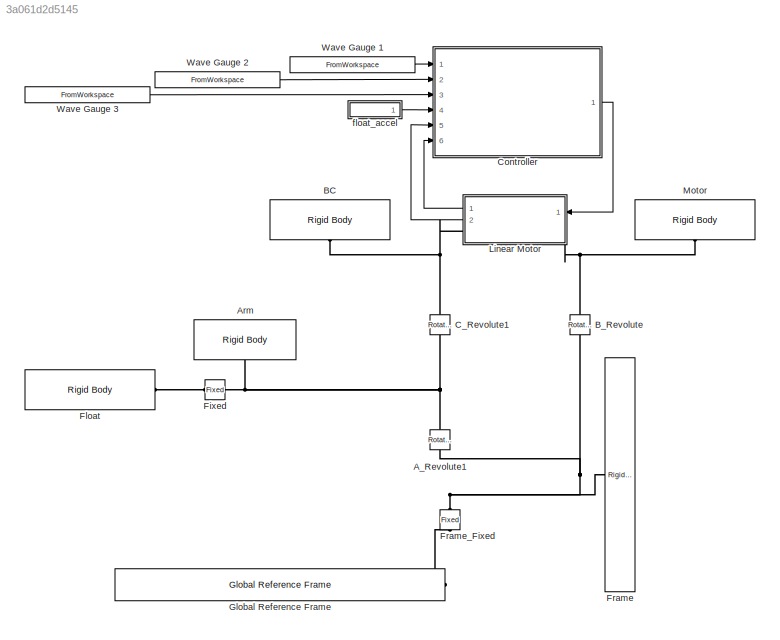
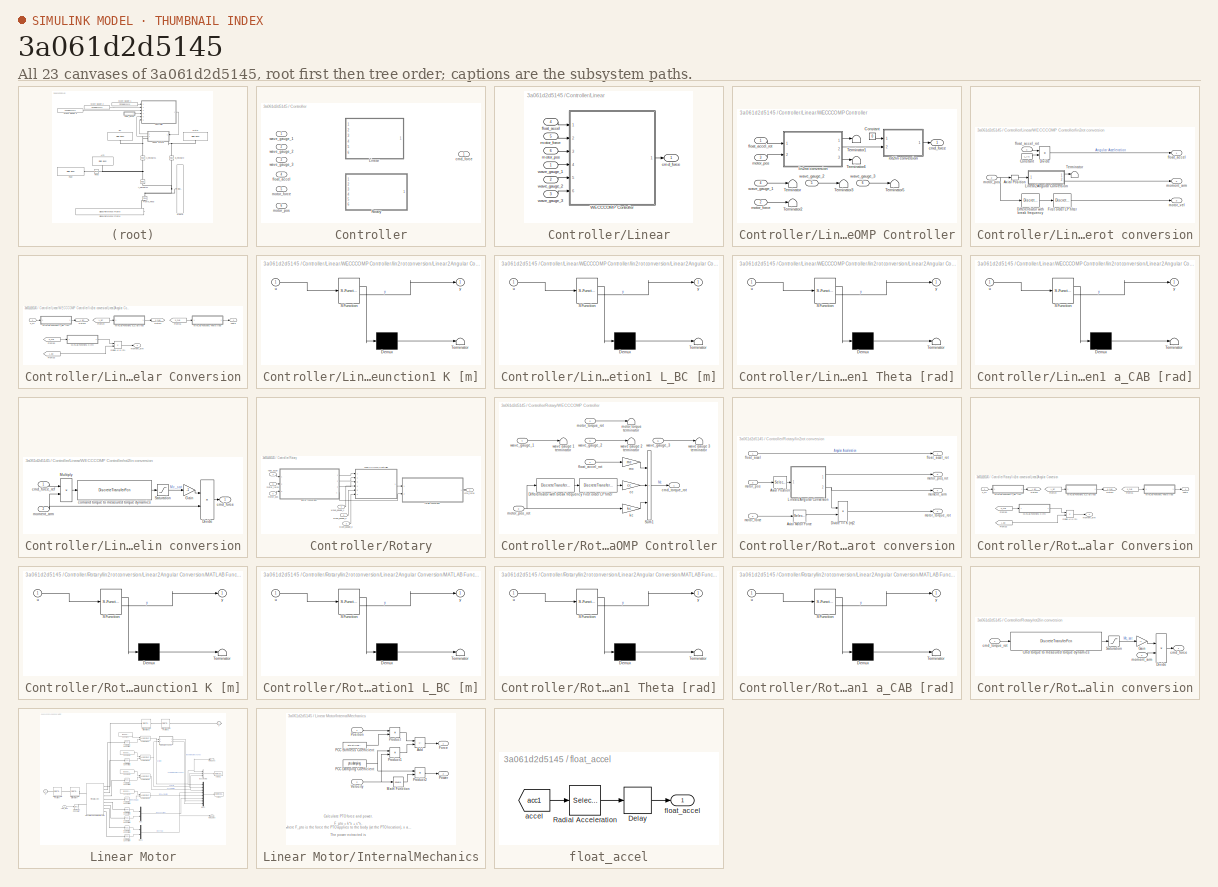
[diagram: thumbnail index - all 23 canvases of the model, root first then tree order]
MODEL slx_3a061d2d5145
KIND model
CONFIG AbsTol = auto
CONFIG EnableMultiTasking = on
CONFIG FixedStep = 0.001
CONFIG MaxStep = 0.001
CONFIG MinStep = auto
CONFIG RelTol = 1e-3
CONFIG SampleTimeConstraint = Unconstrained
CONFIG SolverName = ode4
CONFIG StartTime = 0
CONFIG StopTime = 141.2
BLOCK [Reference] A_Revolute1  REF=WECSim_Lib_Constraints/Rotational
  AttributesFormatString = %<constraint>
  NameLocation = right
  Ports = [0, 0, 0, 0, 0, 1, 1]
  SourceBlock = WECSim_Lib_Constraints/Rotational
  SourceProductName = WEC-Sim
  SourceType = Constraints
BLOCK [Reference] Arm  REF=WECSim_Lib_Body_Elements/Rigid Body
  AttributesFormatString = %<body>
  NameLocation = left
  Ports = [0, 0, 0, 0, 0, 0, 1]
  SourceBlock = WECSim_Lib_Body_Elements/Rigid Body
  SourceProductName = WEC-Sim
  SourceType = Rigid Body
BLOCK [Reference] BC  REF=WECSim_Lib_Body_Elements/Rigid Body
  AttributesFormatString = %<body>
  NameLocation = left
  Ports = [0, 0, 0, 0, 0, 0, 1]
  SourceBlock = WECSim_Lib_Body_Elements/Rigid Body
  SourceProductName = WEC-Sim
  SourceType = Rigid Body
BLOCK [Reference] B_Revolute  REF=WECSim_Lib_Constraints/Rotational
  AttributesFormatString = %<constraint>
  NameLocation = right
  Ports = [0, 0, 0, 0, 0, 1, 1]
  SourceBlock = WECSim_Lib_Constraints/Rotational
  SourceProductName = WEC-Sim
  SourceType = Constraints
BLOCK [Reference] C_Revolute1  REF=WECSim_Lib_Constraints/Rotational
  AttributesFormatString = %<constraint>
  NameLocation = right
  Ports = [0, 0, 0, 0, 0, 1, 1]
  SourceBlock = WECSim_Lib_Constraints/Rotational
  SourceProductName = WEC-Sim
  SourceType = Constraints
BLOCK [SubSystem] Controller
  LabelModeActiveChoice = VSS_Rotary
  Ports = [6, 1]
  RequestExecContextInheritance = off
  Variant = on
  VariantControl = Variant1
  VariantControlMode = label
BLOCK [SubSystem] Controller/Linear
  Ports = [6, 1]
  RequestExecContextInheritance = off
  VariantControl = VSS_Linear
BLOCK [SubSystem] Controller/Linear/WECCCOMP Controller
  Ports = [6, 1]
  RequestExecContextInheritance = off
BLOCK [Constant] Controller/Linear/WECCCOMP Controller/Constant
  NameLocation = top
  Value = 0
BLOCK [Terminator] Controller/Linear/WECCCOMP Controller/Terminator
BLOCK [Terminator] Controller/Linear/WECCCOMP Controller/Terminator1
BLOCK [Terminator] Controller/Linear/WECCCOMP Controller/Terminator2
BLOCK [Terminator] Controller/Linear/WECCCOMP Controller/Terminator3
BLOCK [Terminator] Controller/Linear/WECCCOMP Controller/Terminator4
BLOCK [Terminator] Controller/Linear/WECCCOMP Controller/Terminator5
BLOCK [Outport] Controller/Linear/WECCCOMP Controller/cmd_force
  VectorParamsAs1DForOutWhenUnconnected = off
BLOCK [Inport] Controller/Linear/WECCCOMP Controller/float_accel_rot
BLOCK [SubSystem] Controller/Linear/WECCCOMP Controller/lin2rot conversion
  Ports = [2, 3]
  RequestExecContextInheritance = off
BLOCK [Selector] Controller/Linear/WECCCOMP Controller/lin2rot conversion/Axial Position
  IndexOptions = Index vector (dialog)
  Indices = [3]
  InputPortWidth = 6
  OutputSizes = 1
  Ports = [1, 1]
BLOCK [Constant] Controller/Linear/WECCCOMP Controller/lin2rot conversion/Constant
  Value = L_AC
BLOCK [DiscreteTransferFcn] Controller/Linear/WECCCOMP Controller/lin2rot conversion/Differentiator with break frequency
  Denominator = [(2+2*pi*HPfreq.vel*xPcTs) (2*pi*HPfreq.vel*xPcTs-2)]
  InputPortMap = u0
  Numerator = [1 -1]*2*2*pi*HPfreq.vel
  Ports = [1, 1]
BLOCK [Product] Controller/Linear/WECCCOMP Controller/lin2rot conversion/Divide
  Inputs = **
  Ports = [2, 1]
BLOCK [DiscreteTransferFcn] Controller/Linear/WECCCOMP Controller/lin2rot conversion/First order LP filter
  Denominator = [(2+xPcTs*2*pi*LPfreq.vel) (xPcTs*2*pi*LPfreq.vel-2)]
  InputPortMap = u0
  Numerator = [1 1]*xPcTs*2*pi*LPfreq.vel
  Ports = [1, 1]
BLOCK [SubSystem] Controller/Linear/WECCCOMP Controller/lin2rot conversion/Linear2Angular Conversion
  Ports = [1, 2]
  RequestExecContextInheritance = off
BLOCK [Product] Controller/Linear/WECCCOMP Controller/lin2rot conversion/Linear2Angular Conversion/Divide => K (m)
  Inputs = */
  Ports = [2, 1]
BLOCK [From] Controller/Linear/WECCCOMP Controller/lin2rot conversion/Linear2Angular Conversion/From30
  GotoTag = a_CAB
BLOCK [From] Controller/Linear/WECCCOMP Controller/lin2rot conversion/Linear2Angular Conversion/From31
  GotoTag = a_CAB
BLOCK [From] Controller/Linear/WECCCOMP Controller/lin2rot conversion/Linear2Angular Conversion/From33
  GotoTag = L_BC
BLOCK [From] Controller/Linear/WECCCOMP Controller/lin2rot conversion/Linear2Angular Conversion/From34
  GotoTag = L_BC
BLOCK [Goto] Controller/Linear/WECCCOMP Controller/lin2rot conversion/Linear2Angular Conversion/Goto11
  GotoTag = a_CAB
BLOCK [Goto] Controller/Linear/WECCCOMP Controller/lin2rot conversion/Linear2Angular Conversion/Goto12
  GotoTag = L_BC
BLOCK [SubSystem] Controller/Linear/WECCCOMP Controller/lin2rot conversion/Linear2Angular Conversion/MATLAB Function1 K [m]
  ErrorFcn = Stateflow.Translate.translate
  PermitHierarchicalResolution = ExplicitOnly
  Ports = [1, 1]
  RequestExecContextInheritance = off
  SFBlockType = MATLAB Function
  TreatAsAtomicUnit = on
BLOCK [Demux] Controller/Linear/WECCCOMP Controller/lin2rot conversion/Linear2Angular Conversion/MATLAB Function1 K [m]/ Demux 
  Outputs = 1
  Ports = [1, 1]
BLOCK [S-Function] Controller/Linear/WECCCOMP Controller/lin2rot conversion/Linear2Angular Conversion/MATLAB Function1 K [m]/ SFunction 
  EnableBusSupport = on
  FunctionName = sf_sfun
  Parameters = L_AB,L_AC
  PortCounts = [1 2]
  Ports = [1, 2]
  SFcnIsStateOwnerBlock = off
  SFunctionDeploymentMode = off
  Tag = Stateflow S-Function 1
BLOCK [Terminator] Controller/Linear/WECCCOMP Controller/lin2rot conversion/Linear2Angular Conversion/MATLAB Function1 K [m]/ Terminator 
BLOCK [Inport] Controller/Linear/WECCCOMP Controller/lin2rot conversion/Linear2Angular Conversion/MATLAB Function1 K [m]/u
BLOCK [Outport] Controller/Linear/WECCCOMP Controller/lin2rot conversion/Linear2Angular Conversion/MATLAB Function1 K [m]/y
  VectorParamsAs1DForOutWhenUnconnected = off
BLOCK [SubSystem] Controller/Linear/WECCCOMP Controller/lin2rot conversion/Linear2Angular Conversion/MATLAB Function1 L_BC [m]
  ErrorFcn = Stateflow.Translate.translate
  PermitHierarchicalResolution = ExplicitOnly
  Ports = [1, 1]
  RequestExecContextInheritance = off
  SFBlockType = MATLAB Function
  TreatAsAtomicUnit = on
BLOCK [Demux] Controller/Linear/WECCCOMP Controller/lin2rot conversion/Linear2Angular Conversion/MATLAB Function1 L_BC [m]/ Demux 
  Outputs = 1
  Ports = [1, 1]
BLOCK [S-Function] Controller/Linear/WECCCOMP Controller/lin2rot conversion/Linear2Angular Conversion/MATLAB Function1 L_BC [m]/ SFunction 
  EnableBusSupport = on
  FunctionName = sf_sfun
  Parameters = L_BC_neutral
  PortCounts = [1 2]
  Ports = [1, 2]
  SFcnIsStateOwnerBlock = off
  SFunctionDeploymentMode = off
  Tag = Stateflow S-Function 2
BLOCK [Terminator] Controller/Linear/WECCCOMP Controller/lin2rot conversion/Linear2Angular Conversion/MATLAB Function1 L_BC [m]/ Terminator 
BLOCK [Inport] Controller/Linear/WECCCOMP Controller/lin2rot conversion/Linear2Angular Conversion/MATLAB Function1 L_BC [m]/u
BLOCK [Outport] Controller/Linear/WECCCOMP Controller/lin2rot conversion/Linear2Angular Conversion/MATLAB Function1 L_BC [m]/y
  VectorParamsAs1DForOutWhenUnconnected = off
BLOCK [SubSystem] Controller/Linear/WECCCOMP Controller/lin2rot conversion/Linear2Angular Conversion/MATLAB Function1 Theta [rad]
  ErrorFcn = Stateflow.Translate.translate
  PermitHierarchicalResolution = ExplicitOnly
  Ports = [1, 1]
  RequestExecContextInheritance = off
  SFBlockType = MATLAB Function
  TreatAsAtomicUnit = on
BLOCK [Demux] Controller/Linear/WECCCOMP Controller/lin2rot conversion/Linear2Angular Conversion/MATLAB Function1 Theta [rad]/ Demux 
  Outputs = 1
  Ports = [1, 1]
BLOCK [S-Function] Controller/Linear/WECCCOMP Controller/lin2rot conversion/Linear2Angular Conversion/MATLAB Function1 Theta [rad]/ SFunction 
  EnableBusSupport = on
  FunctionName = sf_sfun
  Parameters = a_CAB_neutral
  PortCounts = [1 2]
  Ports = [1, 2]
  SFcnIsStateOwnerBlock = off
  SFunctionDeploymentMode = off
  Tag = Stateflow S-Function 3
BLOCK [Terminator] Controller/Linear/WECCCOMP Controller/lin2rot conversion/Linear2Angular Conversion/MATLAB Function1 Theta [rad]/ Terminator 
BLOCK [Inport] Controller/Linear/WECCCOMP Controller/lin2rot conversion/Linear2Angular Conversion/MATLAB Function1 Theta [rad]/u
BLOCK [Outport] Controller/Linear/WECCCOMP Controller/lin2rot conversion/Linear2Angular Conversion/MATLAB Function1 Theta [rad]/y
  VectorParamsAs1DForOutWhenUnconnected = off
BLOCK [SubSystem] Controller/Linear/WECCCOMP Controller/lin2rot conversion/Linear2Angular Conversion/MATLAB Function1 a_CAB [rad]
  ErrorFcn = Stateflow.Translate.translate
  PermitHierarchicalResolution = ExplicitOnly
  Ports = [1, 1]
  RequestExecContextInheritance = off
  SFBlockType = MATLAB Function
  TreatAsAtomicUnit = on
BLOCK [Demux] Controller/Linear/WECCCOMP Controller/lin2rot conversion/Linear2Angular Conversion/MATLAB Function1 a_CAB [rad]/ Demux 
  Outputs = 1
  Ports = [1, 1]
BLOCK [S-Function] Controller/Linear/WECCCOMP Controller/lin2rot conversion/Linear2Angular Conversion/MATLAB Function1 a_CAB [rad]/ SFunction 
  EnableBusSupport = on
  FunctionName = sf_sfun
  Parameters = L_AB,L_AC
  PortCounts = [1 2]
  Ports = [1, 2]
  SFcnIsStateOwnerBlock = off
  SFunctionDeploymentMode = off
  Tag = Stateflow S-Function 5
BLOCK [Terminator] Controller/Linear/WECCCOMP Controller/lin2rot conversion/Linear2Angular Conversion/MATLAB Function1 a_CAB [rad]/ Terminator 
BLOCK [Inport] Controller/Linear/WECCCOMP Controller/lin2rot conversion/Linear2Angular Conversion/MATLAB Function1 a_CAB [rad]/u
BLOCK [Outport] Controller/Linear/WECCCOMP Controller/lin2rot conversion/Linear2Angular Conversion/MATLAB Function1 a_CAB [rad]/y
  VectorParamsAs1DForOutWhenUnconnected = off
BLOCK [Outport] Controller/Linear/WECCCOMP Controller/lin2rot conversion/Linear2Angular Conversion/Theta
  VectorParamsAs1DForOutWhenUnconnected = off
BLOCK [Outport] Controller/Linear/WECCCOMP Controller/lin2rot conversion/Linear2Angular Conversion/moment_arm
  Port = 2
  VectorParamsAs1DForOutWhenUnconnected = off
BLOCK [Inport] Controller/Linear/WECCCOMP Controller/lin2rot conversion/Linear2Angular Conversion/x_cyl
BLOCK [Terminator] Controller/Linear/WECCCOMP Controller/lin2rot conversion/Terminator
BLOCK [Outport] Controller/Linear/WECCCOMP Controller/lin2rot conversion/float_accel 
  VectorParamsAs1DForOutWhenUnconnected = off
BLOCK [Inport] Controller/Linear/WECCCOMP Controller/lin2rot conversion/float_accel_rot
  NameLocation = top
BLOCK [Outport] Controller/Linear/WECCCOMP Controller/lin2rot conversion/moment_arm
  Port = 2
  VectorParamsAs1DForOutWhenUnconnected = off
BLOCK [Inport] Controller/Linear/WECCCOMP Controller/lin2rot conversion/motor_pos 
  Port = 2
BLOCK [Outport] Controller/Linear/WECCCOMP Controller/lin2rot conversion/motor_vel
  Port = 3
  VectorParamsAs1DForOutWhenUnconnected = off
BLOCK [Inport] Controller/Linear/WECCCOMP Controller/motor_force
  Port = 2
BLOCK [Inport] Controller/Linear/WECCCOMP Controller/motor_pos 
  Port = 3
BLOCK [SubSystem] Controller/Linear/WECCCOMP Controller/rot2lin conversion
  Ports = [2, 1]
  RequestExecContextInheritance = off
BLOCK [Product] Controller/Linear/WECCCOMP Controller/rot2lin conversion/Divide 
  Inputs = */
  Ports = [2, 1]
BLOCK [Gain] Controller/Linear/WECCCOMP Controller/rot2lin conversion/Gain
  Gain = -1
BLOCK [Product] Controller/Linear/WECCCOMP Controller/rot2lin conversion/Multiply
  Inputs = **
  Ports = [2, 1]
BLOCK [Saturate] Controller/Linear/WECCCOMP Controller/rot2lin conversion/Saturation
  LowerLimit = -McSat
  UpperLimit = McSat
BLOCK [Outport] Controller/Linear/WECCCOMP Controller/rot2lin conversion/cmd_force
  VectorParamsAs1DForOutWhenUnconnected = off
BLOCK [Inport] Controller/Linear/WECCCOMP Controller/rot2lin conversion/cmd_force_ref
BLOCK [DiscreteTransferFcn] Controller/Linear/WECCCOMP Controller/rot2lin conversion/comand torque to measured torque dynamics
  Denominator = [1.0000   -1.9978    0.9978]
  InputPortMap = u0
  NameLocation = top
  Numerator = [ 0.9821   -1.9618    0.9797]
  Ports = [1, 1]
BLOCK [Inport] Controller/Linear/WECCCOMP Controller/rot2lin conversion/moment_arm
  Port = 2
BLOCK [Inport] Controller/Linear/WECCCOMP Controller/wave_gauge_1
  Port = 4
BLOCK [Inport] Controller/Linear/WECCCOMP Controller/wave_gauge_2
  Port = 5
BLOCK [Inport] Controller/Linear/WECCCOMP Controller/wave_gauge_3
  Port = 6
BLOCK [Outport] Controller/Linear/cmd_force
  VectorParamsAs1DForOutWhenUnconnected = off
BLOCK [Inport] Controller/Linear/float_accel
  Port = 4
BLOCK [Inport] Controller/Linear/motor_force
  Port = 5
BLOCK [Inport] Controller/Linear/motor_pos 
  Port = 6
BLOCK [Inport] Controller/Linear/wave_gauge_1
BLOCK [Inport] Controller/Linear/wave_gauge_2
  Port = 2
BLOCK [Inport] Controller/Linear/wave_gauge_3
  Port = 3
BLOCK [SubSystem] Controller/Rotary
  Ports = [6, 1]
  RequestExecContextInheritance = off
  VariantControl = VSS_Rotary
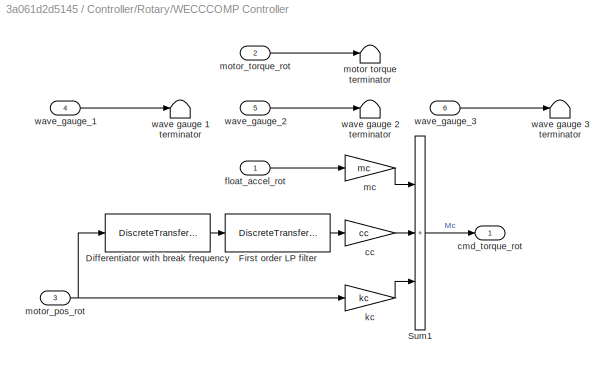
BLOCK [SubSystem] Controller/Rotary/WECCCOMP Controller
  Ports = [6, 1]
  RequestExecContextInheritance = off
BLOCK [DiscreteTransferFcn] Controller/Rotary/WECCCOMP Controller/Differentiator with break frequency
  Denominator = [(2+2*pi*HPfreq.vel*xPcTs) (2*pi*HPfreq.vel*xPcTs-2)]
  InputPortMap = u0
  Numerator = [1 -1]*2*2*pi*HPfreq.vel
  Ports = [1, 1]
BLOCK [DiscreteTransferFcn] Controller/Rotary/WECCCOMP Controller/First order LP filter
  Denominator = [(2+xPcTs*2*pi*LPfreq.vel) (xPcTs*2*pi*LPfreq.vel-2)]
  InputPortMap = u0
  Numerator = [1 1]*xPcTs*2*pi*LPfreq.vel
  Ports = [1, 1]
BLOCK [Sum] Controller/Rotary/WECCCOMP Controller/Sum1
  IconShape = rectangular
  Inputs = +++
  Ports = [3, 1]
BLOCK [Gain] Controller/Rotary/WECCCOMP Controller/cc
  Gain = cc
BLOCK [Outport] Controller/Rotary/WECCCOMP Controller/cmd_torque_rot
  NameLocation = top
  VectorParamsAs1DForOutWhenUnconnected = off
BLOCK [Inport] Controller/Rotary/WECCCOMP Controller/float_accel_rot
BLOCK [Gain] Controller/Rotary/WECCCOMP Controller/kc
  Gain = kc
BLOCK [Gain] Controller/Rotary/WECCCOMP Controller/mc
  Gain = mc
BLOCK [Terminator] Controller/Rotary/WECCCOMP Controller/motor torque terminator
BLOCK [Inport] Controller/Rotary/WECCCOMP Controller/motor_pos_rot 
  Port = 3
BLOCK [Inport] Controller/Rotary/WECCCOMP Controller/motor_torque_rot
  Port = 2
BLOCK [Terminator] Controller/Rotary/WECCCOMP Controller/wave gauge 1 terminator
BLOCK [Terminator] Controller/Rotary/WECCCOMP Controller/wave gauge 2 terminator
BLOCK [Terminator] Controller/Rotary/WECCCOMP Controller/wave gauge 3 terminator
BLOCK [Inport] Controller/Rotary/WECCCOMP Controller/wave_gauge_1
  Port = 4
BLOCK [Inport] Controller/Rotary/WECCCOMP Controller/wave_gauge_2
  Port = 5
BLOCK [Inport] Controller/Rotary/WECCCOMP Controller/wave_gauge_3
  Port = 6
BLOCK [Outport] Controller/Rotary/cmd_force
  VectorParamsAs1DForOutWhenUnconnected = off
BLOCK [Inport] Controller/Rotary/float_accel
  Port = 4
BLOCK [SubSystem] Controller/Rotary/lin2rot conversion
  Ports = [3, 4]
  RequestExecContextInheritance = off
BLOCK [Selector] Controller/Rotary/lin2rot conversion/Axial Motor Force
  IndexOptions = Index vector (dialog)
  Indices = [3]
  InputPortWidth = 6
  OutputSizes = 1
  Ports = [1, 1]
BLOCK [Selector] Controller/Rotary/lin2rot conversion/Axial Position
  IndexOptions = Index vector (dialog)
  Indices = [3]
  InputPortWidth = 6
  OutputSizes = 1
  Ports = [1, 1]
BLOCK [Product] Controller/Rotary/lin2rot conversion/Divide => K (m)2
  Inputs = **
  Ports = [2, 1]
BLOCK [SubSystem] Controller/Rotary/lin2rot conversion/Linear2Angular Conversion
  Ports = [1, 2]
  RequestExecContextInheritance = off
BLOCK [Product] Controller/Rotary/lin2rot conversion/Linear2Angular Conversion/Divide => K (m)
  Inputs = */
  Ports = [2, 1]
BLOCK [From] Controller/Rotary/lin2rot conversion/Linear2Angular Conversion/From30
  GotoTag = a_CAB
BLOCK [From] Controller/Rotary/lin2rot conversion/Linear2Angular Conversion/From31
  GotoTag = a_CAB
BLOCK [From] Controller/Rotary/lin2rot conversion/Linear2Angular Conversion/From33
  GotoTag = L_BC
BLOCK [From] Controller/Rotary/lin2rot conversion/Linear2Angular Conversion/From34
  GotoTag = L_BC
BLOCK [Goto] Controller/Rotary/lin2rot conversion/Linear2Angular Conversion/Goto11
  GotoTag = a_CAB
BLOCK [Goto] Controller/Rotary/lin2rot conversion/Linear2Angular Conversion/Goto12
  GotoTag = L_BC
BLOCK [SubSystem] Controller/Rotary/lin2rot conversion/Linear2Angular Conversion/MATLAB Function1 K [m]
  ErrorFcn = Stateflow.Translate.translate
  PermitHierarchicalResolution = ExplicitOnly
  Ports = [1, 1]
  RequestExecContextInheritance = off
  SFBlockType = MATLAB Function
  TreatAsAtomicUnit = on
BLOCK [Demux] Controller/Rotary/lin2rot conversion/Linear2Angular Conversion/MATLAB Function1 K [m]/ Demux 
  Outputs = 1
  Ports = [1, 1]
BLOCK [S-Function] Controller/Rotary/lin2rot conversion/Linear2Angular Conversion/MATLAB Function1 K [m]/ SFunction 
  EnableBusSupport = on
  FunctionName = sf_sfun
  Parameters = L_AB,L_AC
  PortCounts = [1 2]
  Ports = [1, 2]
  SFcnIsStateOwnerBlock = off
  SFunctionDeploymentMode = off
  Tag = Stateflow S-Function 4
BLOCK [Terminator] Controller/Rotary/lin2rot conversion/Linear2Angular Conversion/MATLAB Function1 K [m]/ Terminator 
BLOCK [Inport] Controller/Rotary/lin2rot conversion/Linear2Angular Conversion/MATLAB Function1 K [m]/u
BLOCK [Outport] Controller/Rotary/lin2rot conversion/Linear2Angular Conversion/MATLAB Function1 K [m]/y
  VectorParamsAs1DForOutWhenUnconnected = off
BLOCK [SubSystem] Controller/Rotary/lin2rot conversion/Linear2Angular Conversion/MATLAB Function1 L_BC [m]
  ErrorFcn = Stateflow.Translate.translate
  PermitHierarchicalResolution = ExplicitOnly
  Ports = [1, 1]
  RequestExecContextInheritance = off
  SFBlockType = MATLAB Function
  TreatAsAtomicUnit = on
BLOCK [Demux] Controller/Rotary/lin2rot conversion/Linear2Angular Conversion/MATLAB Function1 L_BC [m]/ Demux 
  Outputs = 1
  Ports = [1, 1]
BLOCK [S-Function] Controller/Rotary/lin2rot conversion/Linear2Angular Conversion/MATLAB Function1 L_BC [m]/ SFunction 
  EnableBusSupport = on
  FunctionName = sf_sfun
  Parameters = L_BC_neutral
  PortCounts = [1 2]
  Ports = [1, 2]
  SFcnIsStateOwnerBlock = off
  SFunctionDeploymentMode = off
  Tag = Stateflow S-Function 11
BLOCK [Terminator] Controller/Rotary/lin2rot conversion/Linear2Angular Conversion/MATLAB Function1 L_BC [m]/ Terminator 
BLOCK [Inport] Controller/Rotary/lin2rot conversion/Linear2Angular Conversion/MATLAB Function1 L_BC [m]/u
BLOCK [Outport] Controller/Rotary/lin2rot conversion/Linear2Angular Conversion/MATLAB Function1 L_BC [m]/y
  VectorParamsAs1DForOutWhenUnconnected = off
BLOCK [SubSystem] Controller/Rotary/lin2rot conversion/Linear2Angular Conversion/MATLAB Function1 Theta [rad]
  ErrorFcn = Stateflow.Translate.translate
  PermitHierarchicalResolution = ExplicitOnly
  Ports = [1, 1]
  RequestExecContextInheritance = off
  SFBlockType = MATLAB Function
  TreatAsAtomicUnit = on
BLOCK [Demux] Controller/Rotary/lin2rot conversion/Linear2Angular Conversion/MATLAB Function1 Theta [rad]/ Demux 
  Outputs = 1
  Ports = [1, 1]
BLOCK [S-Function] Controller/Rotary/lin2rot conversion/Linear2Angular Conversion/MATLAB Function1 Theta [rad]/ SFunction 
  EnableBusSupport = on
  FunctionName = sf_sfun
  Parameters = a_CAB_neutral
  PortCounts = [1 2]
  Ports = [1, 2]
  SFcnIsStateOwnerBlock = off
  SFunctionDeploymentMode = off
  Tag = Stateflow S-Function 12
BLOCK [Terminator] Controller/Rotary/lin2rot conversion/Linear2Angular Conversion/MATLAB Function1 Theta [rad]/ Terminator 
BLOCK [Inport] Controller/Rotary/lin2rot conversion/Linear2Angular Conversion/MATLAB Function1 Theta [rad]/u
BLOCK [Outport] Controller/Rotary/lin2rot conversion/Linear2Angular Conversion/MATLAB Function1 Theta [rad]/y
  VectorParamsAs1DForOutWhenUnconnected = off
BLOCK [SubSystem] Controller/Rotary/lin2rot conversion/Linear2Angular Conversion/MATLAB Function1 a_CAB [rad]
  ErrorFcn = Stateflow.Translate.translate
  PermitHierarchicalResolution = ExplicitOnly
  Ports = [1, 1]
  RequestExecContextInheritance = off
  SFBlockType = MATLAB Function
  TreatAsAtomicUnit = on
BLOCK [Demux] Controller/Rotary/lin2rot conversion/Linear2Angular Conversion/MATLAB Function1 a_CAB [rad]/ Demux 
  Outputs = 1
  Ports = [1, 1]
BLOCK [S-Function] Controller/Rotary/lin2rot conversion/Linear2Angular Conversion/MATLAB Function1 a_CAB [rad]/ SFunction 
  EnableBusSupport = on
  FunctionName = sf_sfun
  Parameters = L_AB,L_AC
  PortCounts = [1 2]
  Ports = [1, 2]
  SFcnIsStateOwnerBlock = off
  SFunctionDeploymentMode = off
  Tag = Stateflow S-Function 13
BLOCK [Terminator] Controller/Rotary/lin2rot conversion/Linear2Angular Conversion/MATLAB Function1 a_CAB [rad]/ Terminator 
BLOCK [Inport] Controller/Rotary/lin2rot conversion/Linear2Angular Conversion/MATLAB Function1 a_CAB [rad]/u
BLOCK [Outport] Controller/Rotary/lin2rot conversion/Linear2Angular Conversion/MATLAB Function1 a_CAB [rad]/y
  VectorParamsAs1DForOutWhenUnconnected = off
BLOCK [Outport] Controller/Rotary/lin2rot conversion/Linear2Angular Conversion/Theta
  VectorParamsAs1DForOutWhenUnconnected = off
BLOCK [Outport] Controller/Rotary/lin2rot conversion/Linear2Angular Conversion/moment_arm
  Port = 2
  VectorParamsAs1DForOutWhenUnconnected = off
BLOCK [Inport] Controller/Rotary/lin2rot conversion/Linear2Angular Conversion/x_cyl
BLOCK [Inport] Controller/Rotary/lin2rot conversion/float_accel
BLOCK [Outport] Controller/Rotary/lin2rot conversion/float_accel_rot 
  VectorParamsAs1DForOutWhenUnconnected = off
BLOCK [Outport] Controller/Rotary/lin2rot conversion/moment_arm
  Port = 4
  VectorParamsAs1DForOutWhenUnconnected = off
BLOCK [Inport] Controller/Rotary/lin2rot conversion/motor_force
  Port = 2
BLOCK [Inport] Controller/Rotary/lin2rot conversion/motor_pos 
  Port = 3
BLOCK [Outport] Controller/Rotary/lin2rot conversion/motor_pos_rot
  Port = 3
  VectorParamsAs1DForOutWhenUnconnected = off
BLOCK [Outport] Controller/Rotary/lin2rot conversion/motor_torque_rot
  Port = 2
  VectorParamsAs1DForOutWhenUnconnected = off
BLOCK [Inport] Controller/Rotary/motor_force
  Port = 5
BLOCK [Inport] Controller/Rotary/motor_pos 
  Port = 6
BLOCK [SubSystem] Controller/Rotary/rot2lin conversion
  Ports = [2, 1]
  RequestExecContextInheritance = off
BLOCK [DiscreteTransferFcn] Controller/Rotary/rot2lin conversion/Cmd torque to measured torque dynamics
  Denominator = [1.00000000   -1.99777700    0.99783206]
  InputPortMap = u0
  NameLocation = top
  Numerator = [0.96294775   -1.92342278    0.96053421]
  Ports = [1, 1]
BLOCK [Product] Controller/Rotary/rot2lin conversion/Divide 
  Inputs = */
  Ports = [2, 1]
BLOCK [Gain] Controller/Rotary/rot2lin conversion/Gain
  Gain = -1
BLOCK [Saturate] Controller/Rotary/rot2lin conversion/Saturation
  LowerLimit = -McSat
  UpperLimit = McSat
BLOCK [Outport] Controller/Rotary/rot2lin conversion/cmd_force
  VectorParamsAs1DForOutWhenUnconnected = off
BLOCK [Inport] Controller/Rotary/rot2lin conversion/cmd_torque_rot
BLOCK [Inport] Controller/Rotary/rot2lin conversion/moment_arm
  Port = 2
BLOCK [Inport] Controller/Rotary/wave_gauge_1
BLOCK [Inport] Controller/Rotary/wave_gauge_2
  Port = 2
BLOCK [Inport] Controller/Rotary/wave_gauge_3
  Port = 3
BLOCK [Outport] Controller/cmd_force
  VectorParamsAs1DForOutWhenUnconnected = off
BLOCK [Inport] Controller/float_accel
  Port = 4
BLOCK [Inport] Controller/motor_force
  Port = 5
BLOCK [Inport] Controller/motor_pos 
  Port = 6
BLOCK [Inport] Controller/wave_gauge_1
BLOCK [Inport] Controller/wave_gauge_2
  Port = 2
BLOCK [Inport] Controller/wave_gauge_3
  Port = 3
BLOCK [Reference] Fixed  REF=WECSim_Lib_Constraints/Fixed
  AttributesFormatString = %<constraint>
  Ports = [0, 0, 0, 0, 0, 1, 1]
  SourceBlock = WECSim_Lib_Constraints/Fixed
  SourceProductName = WEC-Sim
  SourceType = Constraints
BLOCK [Reference] Float  REF=WECSim_Lib_Body_Elements/Rigid Body
  AttributesFormatString = %<body>
  Ports = [0, 0, 0, 0, 0, 0, 1]
  SourceBlock = WECSim_Lib_Body_Elements/Rigid Body
  SourceProductName = WEC-Sim
  SourceType = Rigid Body
BLOCK [Reference] Frame  REF=WECSim_Lib_Body_Elements/Rigid Body
  AttributesFormatString = %<body>
  Ports = [0, 0, 0, 0, 0, 0, 1]
  SourceBlock = WECSim_Lib_Body_Elements/Rigid Body
  SourceProductName = WEC-Sim
  SourceType = Rigid Body
BLOCK [Reference] Frame_Fixed  REF=WECSim_Lib_Constraints/Fixed
  AttributesFormatString = %<constraint>
  NameLocation = right
  Ports = [0, 0, 0, 0, 0, 1, 1]
  SourceBlock = WECSim_Lib_Constraints/Fixed
  SourceProductName = WEC-Sim
  SourceType = Constraints
BLOCK [Reference] Global Reference Frame  REF=WECSim_Lib_Frames/Global Reference Frame
  Ports = [0, 0, 0, 0, 0, 0, 1]
  SourceBlock = WECSim_Lib_Frames/Global Reference Frame
  SourceType = Frames
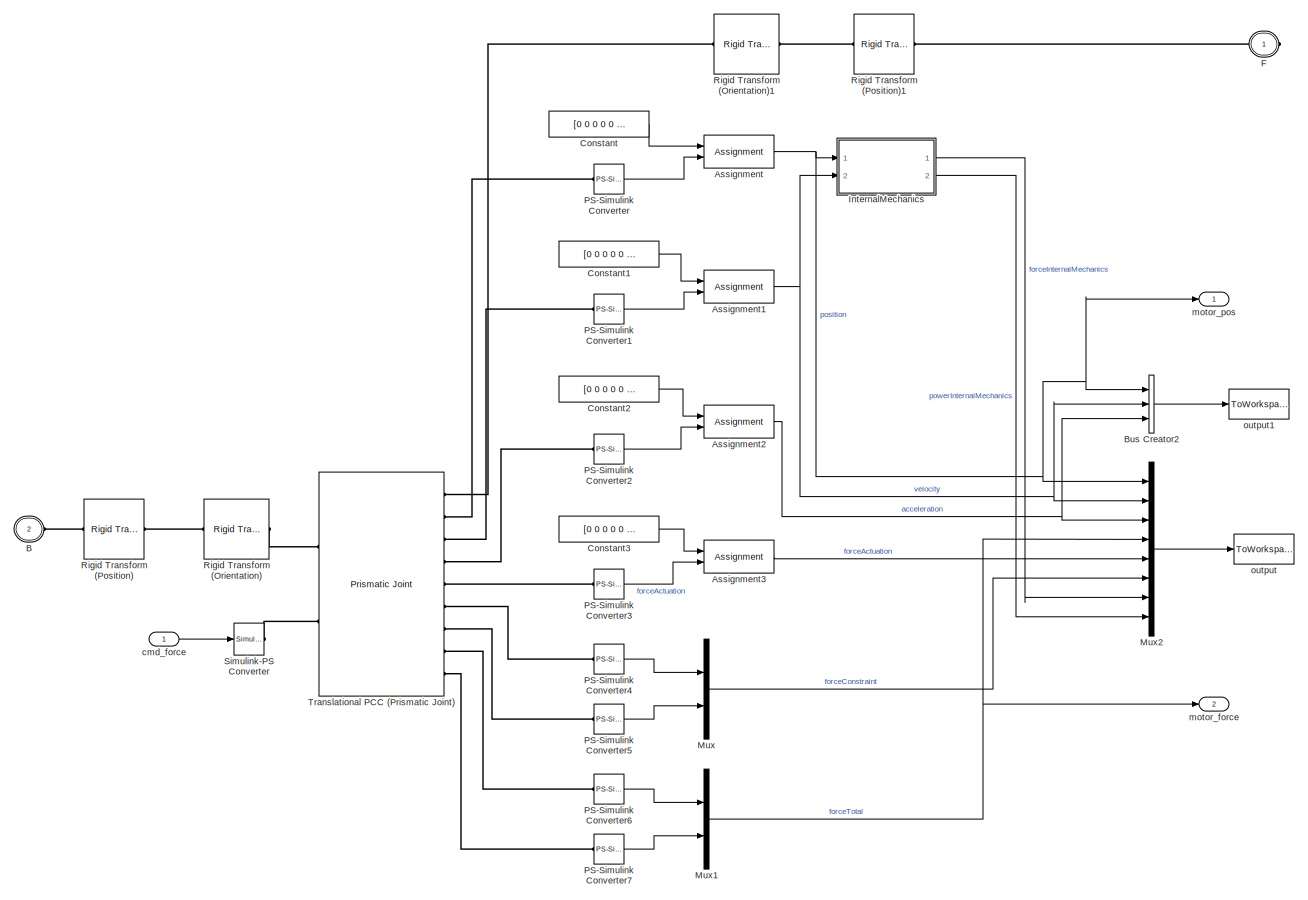
[diagram: Linear Motor - part 1/1, most of the canvas]
BLOCK [SubSystem] Linear Motor
  AttributesFormatString = %<pto>
  Ports = [1, 2, 0, 0, 0, 1, 1]
  RequestExecContextInheritance = off
BLOCK [Assignment] Linear Motor/Assignment
  IndexOptions = Index vector (dialog)
  Indices = 3
  OutputSizes = 1
  Ports = [2, 1]
BLOCK [Assignment] Linear Motor/Assignment1
  IndexOptions = Index vector (dialog)
  Indices = 3
  OutputSizes = 1
  Ports = [2, 1]
BLOCK [Assignment] Linear Motor/Assignment2
  IndexOptions = Index vector (dialog)
  Indices = 3
  OutputSizes = 1
  Ports = [2, 1]
BLOCK [Assignment] Linear Motor/Assignment3
  IndexOptions = Index vector (dialog)
  Indices = 3
  OutputSizes = 1
  Ports = [2, 1]
BLOCK [PMIOPort] Linear Motor/B
  Port = 2
  Side = Left
BLOCK [BusCreator] Linear Motor/Bus Creator2
  DisplayOption = bar
  InheritFromInputs = on
  Inputs = 3
  Ports = [3, 1]
BLOCK [Constant] Linear Motor/Constant
  Value = [0 0 0 0 0 0]
BLOCK [Constant] Linear Motor/Constant1
  Value = [0 0 0 0 0 0]
BLOCK [Constant] Linear Motor/Constant2
  Value = [0 0 0 0 0 0]
BLOCK [Constant] Linear Motor/Constant3
  Value = [0 0 0 0 0 0]
BLOCK [PMIOPort] Linear Motor/F
  Side = Right
BLOCK [SubSystem] Linear Motor/InternalMechanics
  Ports = [2, 2]
  RequestExecContextInheritance = off
BLOCK [Sum] Linear Motor/InternalMechanics/Add
  IconShape = rectangular
  Inputs = --
  Ports = [2, 1]
BLOCK [Outport] Linear Motor/InternalMechanics/Force
  VectorParamsAs1DForOutWhenUnconnected = off
BLOCK [Math] Linear Motor/InternalMechanics/Math Function
  Operator = square
  Ports = [1, 1]
  SignedPower = on
BLOCK [Constant] Linear Motor/InternalMechanics/PCC Damping Coefficient
  Value = pto.damping
BLOCK [Constant] Linear Motor/InternalMechanics/PCC Stiffness Coefficient
  Value = pto.stiffness
BLOCK [Inport] Linear Motor/InternalMechanics/Position
BLOCK [Outport] Linear Motor/InternalMechanics/Power
  Port = 2
  VectorParamsAs1DForOutWhenUnconnected = off
BLOCK [Product] Linear Motor/InternalMechanics/Product
  Inputs = **
  Ports = [2, 1]
BLOCK [Product] Linear Motor/InternalMechanics/Product1
  Inputs = **
  Ports = [2, 1]
BLOCK [Product] Linear Motor/InternalMechanics/Product2
  Inputs = **
  Ports = [2, 1]
BLOCK [Inport] Linear Motor/InternalMechanics/Velocity
  Port = 2
BLOCK [Mux] Linear Motor/Mux
  DisplayOption = bar
  Inputs = 2
  Ports = [2, 1]
BLOCK [Mux] Linear Motor/Mux1
  DisplayOption = bar
  Inputs = 2
  Ports = [2, 1]
BLOCK [Mux] Linear Motor/Mux2
  DisplayOption = bar
  Inputs = 8
  Ports = [8, 1]
BLOCK [Reference] Linear Motor/PS-Simulink Converter  REF=nesl_utility/PS-Simulink
Converter
  Ports = [0, 1, 0, 0, 0, 1]
  SourceBlock = nesl_utility/PS-Simulink\nConverter
  SourceProductBaseCode = PW,SS
  SourceType = PS-Simulink\nConverter
BLOCK [Reference] Linear Motor/PS-Simulink Converter1  REF=nesl_utility/PS-Simulink
Converter
  Ports = [0, 1, 0, 0, 0, 1]
  SourceBlock = nesl_utility/PS-Simulink\nConverter
  SourceProductBaseCode = PW,SS
  SourceType = PS-Simulink\nConverter
BLOCK [Reference] Linear Motor/PS-Simulink Converter2  REF=nesl_utility/PS-Simulink
Converter
  Ports = [0, 1, 0, 0, 0, 1]
  SourceBlock = nesl_utility/PS-Simulink\nConverter
  SourceProductBaseCode = PW,SS
  SourceType = PS-Simulink\nConverter
BLOCK [Reference] Linear Motor/PS-Simulink Converter3  REF=nesl_utility/PS-Simulink
Converter
  Ports = [0, 1, 0, 0, 0, 1]
  SourceBlock = nesl_utility/PS-Simulink\nConverter
  SourceProductBaseCode = PW,SS
  SourceType = PS-Simulink\nConverter
BLOCK [Reference] Linear Motor/PS-Simulink Converter4  REF=nesl_utility/PS-Simulink
Converter
  Ports = [0, 1, 0, 0, 0, 1]
  SourceBlock = nesl_utility/PS-Simulink\nConverter
  SourceProductBaseCode = PW,SS
  SourceType = PS-Simulink\nConverter
BLOCK [Reference] Linear Motor/PS-Simulink Converter5  REF=nesl_utility/PS-Simulink
Converter
  Ports = [0, 1, 0, 0, 0, 1]
  SourceBlock = nesl_utility/PS-Simulink\nConverter
  SourceProductBaseCode = PW,SS
  SourceType = PS-Simulink\nConverter
BLOCK [Reference] Linear Motor/PS-Simulink Converter6  REF=nesl_utility/PS-Simulink
Converter
  Ports = [0, 1, 0, 0, 0, 1]
  SourceBlock = nesl_utility/PS-Simulink\nConverter
  SourceProductBaseCode = PW,SS
  SourceType = PS-Simulink\nConverter
BLOCK [Reference] Linear Motor/PS-Simulink Converter7  REF=nesl_utility/PS-Simulink
Converter
  Ports = [0, 1, 0, 0, 0, 1]
  SourceBlock = nesl_utility/PS-Simulink\nConverter
  SourceProductBaseCode = PW,SS
  SourceType = PS-Simulink\nConverter
BLOCK [Reference] Linear Motor/Rigid Transform (Orientation)  REF=sm_lib/Frames and
Transforms/Rigid
Transform
  Ports = [0, 0, 0, 0, 0, 1, 1]
  SourceBlock = sm_lib/Frames and\nTransforms/Rigid\nTransform
  SourceProductBaseCode = MS
  SourceType = Rigid\nTransform
BLOCK [Reference] Linear Motor/Rigid Transform (Orientation)1  REF=sm_lib/Frames and
Transforms/Rigid
Transform
  Ports = [0, 0, 0, 0, 0, 1, 1]
  SourceBlock = sm_lib/Frames and\nTransforms/Rigid\nTransform
  SourceProductBaseCode = MS
  SourceType = Rigid\nTransform
BLOCK [Reference] Linear Motor/Rigid Transform (Position)  REF=sm_lib/Frames and
Transforms/Rigid
Transform
  Ports = [0, 0, 0, 0, 0, 1, 1]
  SourceBlock = sm_lib/Frames and\nTransforms/Rigid\nTransform
  SourceProductBaseCode = MS
  SourceType = Rigid\nTransform
BLOCK [Reference] Linear Motor/Rigid Transform (Position)1  REF=sm_lib/Frames and
Transforms/Rigid
Transform
  Ports = [0, 0, 0, 0, 0, 1, 1]
  SourceBlock = sm_lib/Frames and\nTransforms/Rigid\nTransform
  SourceProductBaseCode = MS
  SourceType = Rigid\nTransform
BLOCK [Reference] Linear Motor/Simulink-PS Converter  REF=nesl_utility/Simulink-PS
Converter
  Ports = [1, 0, 0, 0, 0, 0, 1]
  SourceBlock = nesl_utility/Simulink-PS\nConverter
  SourceProductBaseCode = PW,SS
  SourceType = Simulink-PS\nConverter
BLOCK [Reference] Linear Motor/Translational PCC (Prismatic Joint)  REF=sm_lib/Joints/Prismatic
Joint
  Ports = [0, 0, 0, 0, 0, 2, 9]
  SourceBlock = sm_lib/Joints/Prismatic\nJoint
  SourceProductBaseCode = MS
  SourceType = Prismatic\nJoint
BLOCK [Inport] Linear Motor/cmd_force
BLOCK [Outport] Linear Motor/motor_force
  Port = 2
  VectorParamsAs1DForOutWhenUnconnected = off
BLOCK [Outport] Linear Motor/motor_pos
  VectorParamsAs1DForOutWhenUnconnected = off
BLOCK [ToWorkspace] Linear Motor/output
  Decimation = round(simu.dtOut/simu.dt,0)
  FixptAsFi = on
  MaxDataPoints = inf
  Ports = [1]
  SampleTime = -1
  SaveFormat = Structure With Time
  VariableName = pto1_out
BLOCK [ToWorkspace] Linear Motor/output1
  Decimation = round(simu.dtOut/simu.dt,0)
  FixptAsFi = on
  MaxDataPoints = inf
  Ports = [1]
  SampleTime = -1
  SaveFormat = Structure With Time
  VariableName = pto_reponse
BLOCK [Reference] Motor  REF=WECSim_Lib_Body_Elements/Rigid Body
  AttributesFormatString = %<body>
  NameLocation = left
  Ports = [0, 0, 0, 0, 0, 0, 1]
  SourceBlock = WECSim_Lib_Body_Elements/Rigid Body
  SourceProductName = WEC-Sim
  SourceType = Rigid Body
BLOCK [FromWorkspace] Wave Gauge 1
  NameLocation = top
  SampleTime = simu.dt
  VariableName = waves.waveAmpTimeViz(:,[1,2])
BLOCK [FromWorkspace] Wave Gauge 2
  NameLocation = top
  SampleTime = simu.dt
  VariableName = waves.waveAmpTimeViz(:,[1,3])
BLOCK [FromWorkspace] Wave Gauge 3
  NameLocation = top
  SampleTime = simu.dt
  VariableName = waves.waveAmpTimeViz(:,[1,4])
BLOCK [SubSystem] float_accel
  Ports = [0, 1]
  RequestExecContextInheritance = off
BLOCK [Delay] float_accel/Delay
  DelayLength = 1
  InitialCondition = 0
  InputPortMap = u0
  Ports = [1, 1]
BLOCK [Selector] float_accel/Radial Acceleration
  IndexOptions = Index vector (dialog)
  Indices = [5]
  InputPortWidth = 6
  OutputSizes = 1
  Ports = [1, 1]
BLOCK [From] float_accel/accel
  GotoTag = acc1
  TagVisibility = global
BLOCK [Outport] float_accel/float_accel
  VectorParamsAs1DForOutWhenUnconnected = off
ANNOTATION Linear Motor/InternalMechanics: Calculate PTO force and power. F_pto = k*x + c*v, where F_pto is the force the PTO applies to the body (at the PTO location), x and v are the joint position and velocity. The power extracted is P = c * v^2
LINE Controller/Linear/WECCCOMP Controller/Constant:1 -> Controller/Linear/WECCCOMP Controller/rot2lin conversion:1
LINE Controller/Linear/WECCCOMP Controller/float_accel_rot:1 -> Controller/Linear/WECCCOMP Controller/lin2rot conversion:1
LINE Controller/Linear/WECCCOMP Controller/lin2rot conversion/Axial Position:1 -> Controller/Linear/WECCCOMP Controller/lin2rot conversion/Linear2Angular Conversion:1
LINE Controller/Linear/WECCCOMP Controller/lin2rot conversion/Constant:1 -> Controller/Linear/WECCCOMP Controller/lin2rot conversion/Divide:2
LINE Controller/Linear/WECCCOMP Controller/lin2rot conversion/Differentiator with break frequency:1 -> Controller/Linear/WECCCOMP Controller/lin2rot conversion/First order LP filter:1
LINE Controller/Linear/WECCCOMP Controller/lin2rot conversion/Divide:1 -> Controller/Linear/WECCCOMP Controller/lin2rot conversion/float_accel :1
LINE Controller/Linear/WECCCOMP Controller/lin2rot conversion/First order LP filter:1 -> Controller/Linear/WECCCOMP Controller/lin2rot conversion/motor_vel:1
LINE Controller/Linear/WECCCOMP Controller/lin2rot conversion/Linear2Angular Conversion/Divide => K (m):1 -> Controller/Linear/WECCCOMP Controller/lin2rot conversion/Linear2Angular Conversion/moment_arm:1
LINE Controller/Linear/WECCCOMP Controller/lin2rot conversion/Linear2Angular Conversion/From30:1 -> Controller/Linear/WECCCOMP Controller/lin2rot conversion/Linear2Angular Conversion/MATLAB Function1 K [m]:1
LINE Controller/Linear/WECCCOMP Controller/lin2rot conversion/Linear2Angular Conversion/From31:1 -> Controller/Linear/WECCCOMP Controller/lin2rot conversion/Linear2Angular Conversion/MATLAB Function1 Theta [rad]:1
LINE Controller/Linear/WECCCOMP Controller/lin2rot conversion/Linear2Angular Conversion/From33:1 -> Controller/Linear/WECCCOMP Controller/lin2rot conversion/Linear2Angular Conversion/Divide => K (m):2
LINE Controller/Linear/WECCCOMP Controller/lin2rot conversion/Linear2Angular Conversion/From34:1 -> Controller/Linear/WECCCOMP Controller/lin2rot conversion/Linear2Angular Conversion/MATLAB Function1 a_CAB [rad]:1
LINE Controller/Linear/WECCCOMP Controller/lin2rot conversion/Linear2Angular Conversion/MATLAB Function1 K [m]:1 -> Controller/Linear/WECCCOMP Controller/lin2rot conversion/Linear2Angular Conversion/Divide => K (m):1
LINE Controller/Linear/WECCCOMP Controller/lin2rot conversion/Linear2Angular Conversion/MATLAB Function1 L_BC [m]:1 -> Controller/Linear/WECCCOMP Controller/lin2rot conversion/Linear2Angular Conversion/Goto12:1
LINE Controller/Linear/WECCCOMP Controller/lin2rot conversion/Linear2Angular Conversion/MATLAB Function1 Theta [rad]:1 -> Controller/Linear/WECCCOMP Controller/lin2rot conversion/Linear2Angular Conversion/Theta:1
LINE Controller/Linear/WECCCOMP Controller/lin2rot conversion/Linear2Angular Conversion/MATLAB Function1 a_CAB [rad]:1 -> Controller/Linear/WECCCOMP Controller/lin2rot conversion/Linear2Angular Conversion/Goto11:1
LINE Controller/Linear/WECCCOMP Controller/lin2rot conversion/Linear2Angular Conversion/x_cyl:1 -> Controller/Linear/WECCCOMP Controller/lin2rot conversion/Linear2Angular Conversion/MATLAB Function1 L_BC [m]:1
LINE Controller/Linear/WECCCOMP Controller/lin2rot conversion/Linear2Angular Conversion:1 -> Controller/Linear/WECCCOMP Controller/lin2rot conversion/Terminator:1
LINE Controller/Linear/WECCCOMP Controller/lin2rot conversion/Linear2Angular Conversion:2 -> Controller/Linear/WECCCOMP Controller/lin2rot conversion/moment_arm:1
LINE Controller/Linear/WECCCOMP Controller/lin2rot conversion/float_accel_rot:1 -> Controller/Linear/WECCCOMP Controller/lin2rot conversion/Divide:1
NET Controller/Linear/WECCCOMP Controller/lin2rot conversion/motor_pos :1 -> Controller/Linear/WECCCOMP Controller/lin2rot conversion/Axial Position:1, Controller/Linear/WECCCOMP Controller/lin2rot conversion/Differentiator with break frequency:1
LINE Controller/Linear/WECCCOMP Controller/lin2rot conversion:1 -> Controller/Linear/WECCCOMP Controller/Terminator1:1
LINE Controller/Linear/WECCCOMP Controller/lin2rot conversion:2 -> Controller/Linear/WECCCOMP Controller/rot2lin conversion:2
LINE Controller/Linear/WECCCOMP Controller/lin2rot conversion:3 -> Controller/Linear/WECCCOMP Controller/Terminator4:1
LINE Controller/Linear/WECCCOMP Controller/motor_force:1 -> Controller/Linear/WECCCOMP Controller/Terminator2:1
LINE Controller/Linear/WECCCOMP Controller/motor_pos :1 -> Controller/Linear/WECCCOMP Controller/lin2rot conversion:2
LINE Controller/Linear/WECCCOMP Controller/rot2lin conversion/Divide :1 -> Controller/Linear/WECCCOMP Controller/rot2lin conversion/cmd_force:1
LINE Controller/Linear/WECCCOMP Controller/rot2lin conversion/Gain:1 -> Controller/Linear/WECCCOMP Controller/rot2lin conversion/Divide :1
LINE Controller/Linear/WECCCOMP Controller/rot2lin conversion/Multiply:1 -> Controller/Linear/WECCCOMP Controller/rot2lin conversion/comand torque to measured torque dynamics:1
LINE Controller/Linear/WECCCOMP Controller/rot2lin conversion/Saturation:1 -> Controller/Linear/WECCCOMP Controller/rot2lin conversion/Gain:1
LINE Controller/Linear/WECCCOMP Controller/rot2lin conversion/cmd_force_ref:1 -> Controller/Linear/WECCCOMP Controller/rot2lin conversion/Multiply:1
LINE Controller/Linear/WECCCOMP Controller/rot2lin conversion/comand torque to measured torque dynamics:1 -> Controller/Linear/WECCCOMP Controller/rot2lin conversion/Saturation:1
NET Controller/Linear/WECCCOMP Controller/rot2lin conversion/moment_arm:1 -> Controller/Linear/WECCCOMP Controller/rot2lin conversion/Divide :2, Controller/Linear/WECCCOMP Controller/rot2lin conversion/Multiply:2
LINE Controller/Linear/WECCCOMP Controller/rot2lin conversion:1 -> Controller/Linear/WECCCOMP Controller/cmd_force:1
LINE Controller/Linear/WECCCOMP Controller/wave_gauge_1:1 -> Controller/Linear/WECCCOMP Controller/Terminator:1
LINE Controller/Linear/WECCCOMP Controller/wave_gauge_2:1 -> Controller/Linear/WECCCOMP Controller/Terminator3:1
LINE Controller/Linear/WECCCOMP Controller/wave_gauge_3:1 -> Controller/Linear/WECCCOMP Controller/Terminator5:1
LINE Controller/Linear/WECCCOMP Controller:1 -> Controller/Linear/cmd_force:1
LINE Controller/Linear/float_accel:1 -> Controller/Linear/WECCCOMP Controller:1
LINE Controller/Linear/motor_force:1 -> Controller/Linear/WECCCOMP Controller:2
LINE Controller/Linear/motor_pos :1 -> Controller/Linear/WECCCOMP Controller:3
LINE Controller/Linear/wave_gauge_1:1 -> Controller/Linear/WECCCOMP Controller:4
LINE Controller/Linear/wave_gauge_2:1 -> Controller/Linear/WECCCOMP Controller:5
LINE Controller/Linear/wave_gauge_3:1 -> Controller/Linear/WECCCOMP Controller:6
LINE Controller/Rotary/WECCCOMP Controller/Differentiator with break frequency:1 -> Controller/Rotary/WECCCOMP Controller/First order LP filter:1
LINE Controller/Rotary/WECCCOMP Controller/First order LP filter:1 -> Controller/Rotary/WECCCOMP Controller/cc:1
LINE Controller/Rotary/WECCCOMP Controller/Sum1:1 -> Controller/Rotary/WECCCOMP Controller/cmd_torque_rot:1
LINE Controller/Rotary/WECCCOMP Controller/cc:1 -> Controller/Rotary/WECCCOMP Controller/Sum1:2
LINE Controller/Rotary/WECCCOMP Controller/float_accel_rot:1 -> Controller/Rotary/WECCCOMP Controller/mc:1
LINE Controller/Rotary/WECCCOMP Controller/kc:1 -> Controller/Rotary/WECCCOMP Controller/Sum1:3
LINE Controller/Rotary/WECCCOMP Controller/mc:1 -> Controller/Rotary/WECCCOMP Controller/Sum1:1
NET Controller/Rotary/WECCCOMP Controller/motor_pos_rot :1 -> Controller/Rotary/WECCCOMP Controller/Differentiator with break frequency:1, Controller/Rotary/WECCCOMP Controller/kc:1
LINE Controller/Rotary/WECCCOMP Controller/motor_torque_rot:1 -> Controller/Rotary/WECCCOMP Controller/motor torque terminator:1
LINE Controller/Rotary/WECCCOMP Controller/wave_gauge_1:1 -> Controller/Rotary/WECCCOMP Controller/wave gauge 1 terminator:1
LINE Controller/Rotary/WECCCOMP Controller/wave_gauge_2:1 -> Controller/Rotary/WECCCOMP Controller/wave gauge 2 terminator:1
LINE Controller/Rotary/WECCCOMP Controller/wave_gauge_3:1 -> Controller/Rotary/WECCCOMP Controller/wave gauge 3 terminator:1
LINE Controller/Rotary/WECCCOMP Controller:1 -> Controller/Rotary/rot2lin conversion:1
LINE Controller/Rotary/float_accel:1 -> Controller/Rotary/lin2rot conversion:1
LINE Controller/Rotary/lin2rot conversion/Axial Motor Force:1 -> Controller/Rotary/lin2rot conversion/Divide => K (m)2:2
LINE Controller/Rotary/lin2rot conversion/Axial Position:1 -> Controller/Rotary/lin2rot conversion/Linear2Angular Conversion:1
LINE Controller/Rotary/lin2rot conversion/Divide => K (m)2:1 -> Controller/Rotary/lin2rot conversion/motor_torque_rot:1
LINE Controller/Rotary/lin2rot conversion/Linear2Angular Conversion/Divide => K (m):1 -> Controller/Rotary/lin2rot conversion/Linear2Angular Conversion/moment_arm:1
LINE Controller/Rotary/lin2rot conversion/Linear2Angular Conversion/From30:1 -> Controller/Rotary/lin2rot conversion/Linear2Angular Conversion/MATLAB Function1 K [m]:1
LINE Controller/Rotary/lin2rot conversion/Linear2Angular Conversion/From31:1 -> Controller/Rotary/lin2rot conversion/Linear2Angular Conversion/MATLAB Function1 Theta [rad]:1
LINE Controller/Rotary/lin2rot conversion/Linear2Angular Conversion/From33:1 -> Controller/Rotary/lin2rot conversion/Linear2Angular Conversion/Divide => K (m):2
LINE Controller/Rotary/lin2rot conversion/Linear2Angular Conversion/From34:1 -> Controller/Rotary/lin2rot conversion/Linear2Angular Conversion/MATLAB Function1 a_CAB [rad]:1
LINE Controller/Rotary/lin2rot conversion/Linear2Angular Conversion/MATLAB Function1 K [m]:1 -> Controller/Rotary/lin2rot conversion/Linear2Angular Conversion/Divide => K (m):1
LINE Controller/Rotary/lin2rot conversion/Linear2Angular Conversion/MATLAB Function1 L_BC [m]:1 -> Controller/Rotary/lin2rot conversion/Linear2Angular Conversion/Goto12:1
LINE Controller/Rotary/lin2rot conversion/Linear2Angular Conversion/MATLAB Function1 Theta [rad]:1 -> Controller/Rotary/lin2rot conversion/Linear2Angular Conversion/Theta:1
LINE Controller/Rotary/lin2rot conversion/Linear2Angular Conversion/MATLAB Function1 a_CAB [rad]:1 -> Controller/Rotary/lin2rot conversion/Linear2Angular Conversion/Goto11:1
LINE Controller/Rotary/lin2rot conversion/Linear2Angular Conversion/x_cyl:1 -> Controller/Rotary/lin2rot conversion/Linear2Angular Conversion/MATLAB Function1 L_BC [m]:1
LINE Controller/Rotary/lin2rot conversion/Linear2Angular Conversion:1 -> Controller/Rotary/lin2rot conversion/motor_pos_rot:1
NET Controller/Rotary/lin2rot conversion/Linear2Angular Conversion:2 -> Controller/Rotary/lin2rot conversion/Divide => K (m)2:1, Controller/Rotary/lin2rot conversion/moment_arm:1
LINE Controller/Rotary/lin2rot conversion/float_accel:1 -> Controller/Rotary/lin2rot conversion/float_accel_rot :1
LINE Controller/Rotary/lin2rot conversion/motor_force:1 -> Controller/Rotary/lin2rot conversion/Axial Motor Force:1
LINE Controller/Rotary/lin2rot conversion/motor_pos :1 -> Controller/Rotary/lin2rot conversion/Axial Position:1
LINE Controller/Rotary/lin2rot conversion:1 -> Controller/Rotary/WECCCOMP Controller:1
LINE Controller/Rotary/lin2rot conversion:2 -> Controller/Rotary/WECCCOMP Controller:2
LINE Controller/Rotary/lin2rot conversion:3 -> Controller/Rotary/WECCCOMP Controller:3
LINE Controller/Rotary/lin2rot conversion:4 -> Controller/Rotary/rot2lin conversion:2
LINE Controller/Rotary/motor_force:1 -> Controller/Rotary/lin2rot conversion:2
LINE Controller/Rotary/motor_pos :1 -> Controller/Rotary/lin2rot conversion:3
LINE Controller/Rotary/rot2lin conversion/Cmd torque to measured torque dynamics:1 -> Controller/Rotary/rot2lin conversion/Saturation:1
LINE Controller/Rotary/rot2lin conversion/Divide :1 -> Controller/Rotary/rot2lin conversion/cmd_force:1
LINE Controller/Rotary/rot2lin conversion/Gain:1 -> Controller/Rotary/rot2lin conversion/Divide :1
LINE Controller/Rotary/rot2lin conversion/Saturation:1 -> Controller/Rotary/rot2lin conversion/Gain:1
LINE Controller/Rotary/rot2lin conversion/cmd_torque_rot:1 -> Controller/Rotary/rot2lin conversion/Cmd torque to measured torque dynamics:1
LINE Controller/Rotary/rot2lin conversion/moment_arm:1 -> Controller/Rotary/rot2lin conversion/Divide :2
LINE Controller/Rotary/rot2lin conversion:1 -> Controller/Rotary/cmd_force:1
LINE Controller/Rotary/wave_gauge_1:1 -> Controller/Rotary/WECCCOMP Controller:4
LINE Controller/Rotary/wave_gauge_2:1 -> Controller/Rotary/WECCCOMP Controller:5
LINE Controller/Rotary/wave_gauge_3:1 -> Controller/Rotary/WECCCOMP Controller:6
LINE Controller:1 -> Linear Motor:1
LINE Linear Motor:1 -> Controller:6
LINE Linear Motor:2 -> Controller:5
LINE Wave Gauge 1:1 -> Controller:1
LINE Wave Gauge 2:1 -> Controller:2
LINE Wave Gauge 3:1 -> Controller:3
LINE float_accel/Delay:1 -> float_accel/float_accel:1
LINE float_accel/Radial Acceleration:1 -> float_accel/Delay:1
LINE float_accel/accel:1 -> float_accel/Radial Acceleration:1
LINE float_accel:1 -> Controller:4
PNET net1: A_Revolute1:LConn1 -- B_Revolute:LConn1 -- Frame:RConn1 -- Frame_Fixed:RConn1
PNET net2: A_Revolute1:RConn1 -- Arm:RConn1 -- C_Revolute1:LConn1 -- Fixed:LConn1
PNET net3: BC:RConn1 -- C_Revolute1:RConn1 -- Linear Motor:RConn1
PNET net4: B_Revolute:RConn1 -- Linear Motor:LConn1 -- Motor:RConn1
PLINE Fixed:RConn1 -- Float:RConn1
PLINE Frame_Fixed:LConn1 -- Global Reference Frame:RConn1
note: NET lines group one-source signal fan-out (src -> all destinations, sorted); 1:1 wires keep LINE; PNET lines group multi-terminal physical nets as a canonical sorted terminal list (undirected conserving connections); 2-terminal nets keep the pairwise PLINE form
CHART Controller/Linear/WECCCOMP Controller/lin2rot conversion/Linear2Angular Conversion/MATLAB Function1
K [m] states=1 transitions=1
  STATE_LABEL 'eML_blk_kernel()'
  STATE_LABEL "SCRIPT:\nfunction y = fcn(u,L_AB,L_AC)\n%#codegen\ny = L_AB'*L_AC'*sin(u);\n"
CHART Controller/Linear/WECCCOMP Controller/lin2rot conversion/Linear2Angular Conversion/MATLAB Function1
L_BC [m] states=1 transitions=1
  STATE_LABEL 'eML_blk_kernel()'
  STATE_LABEL "SCRIPT:\n function y = fcn(u,L_BC_neutral)\n%#codegen\n%\ny = u+L_BC_neutral';\n"
CHART Controller/Linear/WECCCOMP Controller/lin2rot conversion/Linear2Angular Conversion/MATLAB Function1
Theta [rad] states=1 transitions=1
  STATE_LABEL 'eML_blk_kernel()'
  STATE_LABEL "SCRIPT:\nfunction y = fcn(u,a_CAB_neutral)\n%#codegen\ny = u-a_CAB_neutral';\n"
CHART Controller/Rotary/lin2rot conversion/Linear2Angular Conversion/MATLAB Function1
K [m] states=1 transitions=1
  STATE_LABEL 'eML_blk_kernel()'
  STATE_LABEL "SCRIPT:\nfunction y = fcn(u,L_AB,L_AC)\n%#codegen\ny = L_AB'*L_AC'*sin(u);\n"
CHART Controller/Linear/WECCCOMP Controller/lin2rot conversion/Linear2Angular Conversion/MATLAB Function1
a_CAB [rad] states=1 transitions=1
  STATE_LABEL 'eML_blk_kernel()'
  STATE_LABEL "SCRIPT:\nfunction y = fcn(u,L_AB,L_AC)\n%#codegen\n%\ny = acos((u.^2-L_AB'^2-L_AC'^2)/(-2*L_AB'*L_AC'));\n"
CHART Controller/Rotary/lin2rot conversion/Linear2Angular Conversion/MATLAB Function1
L_BC [m] states=1 transitions=1
  STATE_LABEL 'eML_blk_kernel()'
  STATE_LABEL "SCRIPT:\n function y = fcn(u,L_BC_neutral)\n%#codegen\n%\ny = u+L_BC_neutral';\n"
CHART Controller/Rotary/lin2rot conversion/Linear2Angular Conversion/MATLAB Function1
Theta [rad] states=1 transitions=1
  STATE_LABEL 'eML_blk_kernel()'
  STATE_LABEL "SCRIPT:\nfunction y = fcn(u,a_CAB_neutral)\n%#codegen\ny = u-a_CAB_neutral';\n"
CHART Controller/Rotary/lin2rot conversion/Linear2Angular Conversion/MATLAB Function1
a_CAB [rad] states=1 transitions=1
  STATE_LABEL 'eML_blk_kernel()'
  STATE_LABEL "SCRIPT:\nfunction y = fcn(u,L_AB,L_AC)\n%#codegen\n%\ny = acos((u.^2-L_AB'^2-L_AC'^2)/(-2*L_AB'*L_AC'));\n"
CHART  states=0 transitions=0
CHART  states=0 transitions=0
CHART  states=0 transitions=0
CHART  states=0 transitions=0
CHART  states=0 transitions=0
CHART  states=0 transitions=0
CHART  states=0 transitions=0
CHART  states=0 transitions=0
